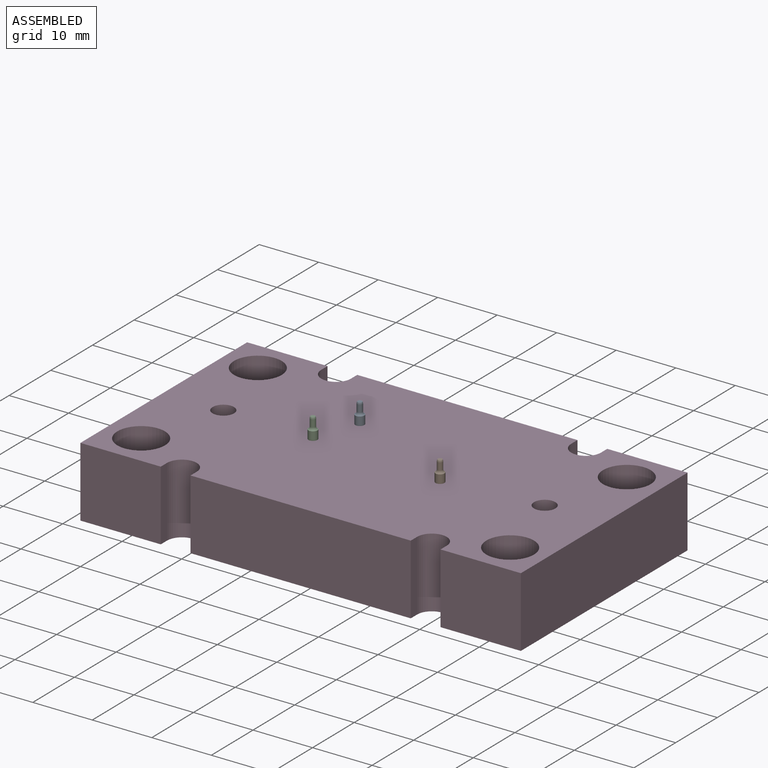
[diagram: assembled view]
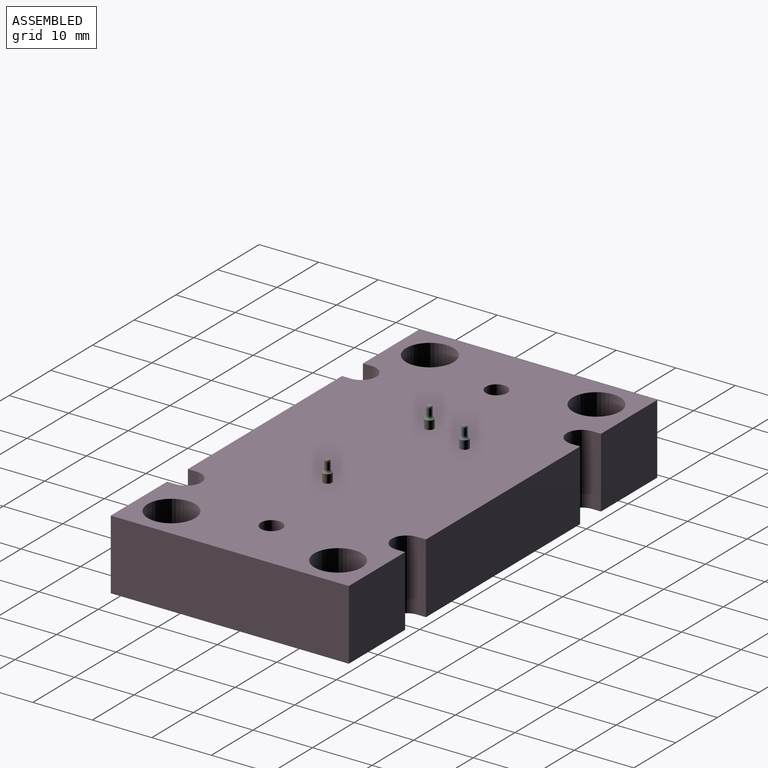
[diagram: assembled view, second angle]
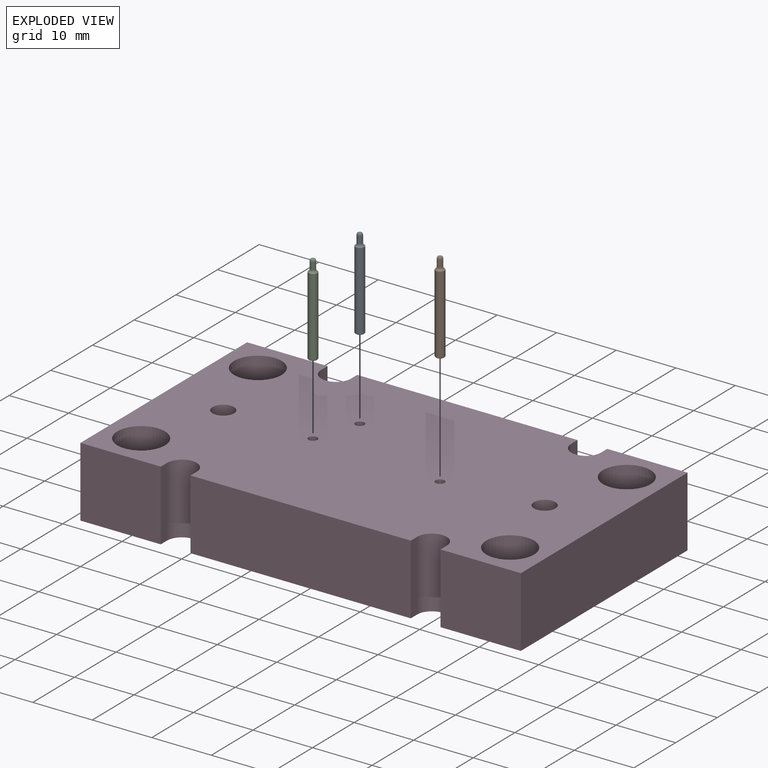
[diagram: exploded view]
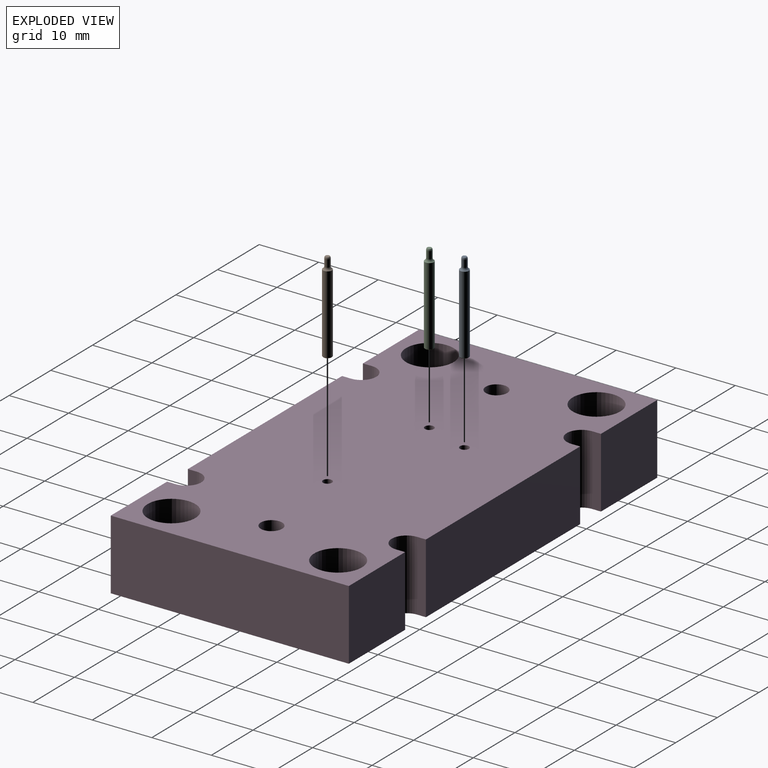
[diagram: exploded view, second angle]
ASSEMBLY  parts=4 mates=3
PART A: 9 faces, bbox 2.1x2.1x15.2 mm
  f0: plane 0.71x0.71mm, normal (0,0,1), area 0.4mm2, adj f7
  f1: plane 1.3x1.3mm, normal (0,0,-1), area 1.3mm2, adj f8
  f2: cylinder r=0.75mm len=13.14mm, axis (0,0,1), area 61.9mm2, adj f3,f8
  f3: torus R=0.95mm, axis (0,0,1), area 2mm2, adj f2,f4
  f4: cylinder r=0.45mm len=1.21mm, axis (0,0,1), area 3.4mm2, adj f3,f5
  f5: revolved ~0.9x0.9mm, area 0.5mm2, adj f4,f6
  f6: cone r=0.42mm half-angle=20deg, axis (0,0,-1), area 0.3mm2, adj f5,f7
  f7: torus R=0.36mm, axis (0,0,1), area 0.1mm2, adj f0,f6
  f8: cone r=0.75mm half-angle=45deg, axis (0,0,1), area 0.6mm2, adj f1,f2
PART B: same geometry as A
PART C: same geometry as A
PART D: 47 faces, bbox 74x40x11.8 mm
  f0: cylinder r=2.5mm len=11.8mm, axis (0,0,-1), area 92.7mm2, adj f1,f24,f26,f27
  f1: plane 11.8x1.5mm, normal (-1,0,0), area 17.7mm2, adj f0,f2,f26,f27
  f2: plane 13.5x11.8mm, normal (0,-1,0), area 159.3mm2, adj f1,f3,f26,f27
  f3: plane 40x11.8mm, normal (1,0,0), area 472mm2, adj f2,f4,f26,f27
  f4: plane 13.5x11.8mm, normal (0,1,0), area 159.3mm2, adj f3,f5,f26,f27
  f5: plane 11.8x1.5mm, normal (-1,0,0), area 17.7mm2, adj f4,f6,f26,f27
  f6: cylinder r=2.5mm len=11.8mm, axis (0,0,-1), area 92.7mm2, adj f5,f7,f26,f27
  f7: plane 11.8x1.5mm, normal (1,0,0), area 17.7mm2, adj f6,f8,f26,f27
  f8: plane 37x11.8mm, normal (0,1,0), area 436.6mm2, adj f7,f9,f26,f27
  f9: plane 11.8x1.5mm, normal (-1,0,0), area 17.7mm2, adj f8,f10,f26,f27
  f10: cylinder r=2.5mm len=11.8mm, axis (0,0,-1), area 92.7mm2, adj f9,f11,f26,f27
  f11: plane 11.8x1.5mm, normal (1,0,0), area 17.7mm2, adj f10,f12,f26,f27
  f12: plane 13.5x11.8mm, normal (0,1,0), area 159.3mm2, adj f11,f13,f26,f27
  f13: plane 40x11.8mm, normal (-1,0,0), area 472mm2, adj f12,f14,f26,f27
  f14: plane 13.5x11.8mm, normal (0,-1,0), area 159.3mm2, adj f13,f15,f26,f27
  f15: plane 11.8x1.5mm, normal (1,0,0), area 17.7mm2, adj f14,f16,f26,f27
  f16: cylinder r=2.5mm len=11.8mm, axis (0,0,-1), area 92.7mm2, adj f15,f17,f26,f27
  f17: plane 11.8x1.5mm, normal (-1,0,0), area 17.7mm2, adj f16,f18,f26,f27
  f18: plane 37x11.8mm, normal (0,-1,0), area 436.6mm2, adj f17,f24,f26,f27
  f19: cylinder r=4mm len=8mm, axis (0,0,-1), area 100.5mm2, adj f26,f33
  f20: cylinder r=1.8mm len=11.8mm, axis (0,0,-1), area 133.5mm2, adj f26,f27
  f21: cylinder r=1.8mm len=11.8mm, axis (0,0,-1), area 133.5mm2, adj f26,f27
  f22: cylinder r=4mm len=8mm, axis (0,0,-1), area 100.5mm2, adj f26,f35
  f23: cylinder r=4mm len=8mm, axis (0,0,-1), area 100.5mm2, adj f26,f31
  f24: plane 11.8x1.5mm, normal (1,0,0), area 17.7mm2, adj f0,f18,f26,f27
  f25: cylinder r=4mm len=8mm, axis (0,0,-1), area 100.5mm2, adj f26,f29
  f26: plane 74x40mm, normal (0,0,1), area 2664mm2, adj f0,f1,f2,f3,f4,f5,f6,f7
  f27: plane 74x40mm, normal (0,0,-1), area 2070.9mm2, adj f0,f1,f2,f3,f4,f5,f6,f7
  f28: cylinder r=2.25mm len=7.8mm, axis (0,0,-1), area 110.3mm2, adj f27,f29
  f29: plane 8x8mm, normal (0,0,1), area 34.4mm2, adj f25,f28
  f30: cylinder r=2.25mm len=7.8mm, axis (0,0,-1), area 110.3mm2, adj f27,f31
  f31: plane 8x8mm, normal (0,0,1), area 34.4mm2, adj f23,f30
  f32: cylinder r=2.25mm len=7.8mm, axis (0,0,-1), area 110.3mm2, adj f27,f33
  f33: plane 8x8mm, normal (0,0,1), area 34.4mm2, adj f19,f32
  f34: cylinder r=2.25mm len=7.8mm, axis (0,0,-1), area 110.3mm2, adj f27,f35
  f35: plane 8x8mm, normal (0,0,1), area 34.4mm2, adj f22,f34
  f36: cone r=0mm half-angle=59deg, axis (0,0,-1), area 14.7mm2, adj f37
  f37: cylinder r=2mm len=4.85mm, axis (0,0,-1), area 60.9mm2, adj f36,f40
  f38: cone r=0mm half-angle=59deg, axis (0,0,-1), area 14.7mm2, adj f39
  f39: cylinder r=2mm len=4.85mm, axis (0,0,-1), area 60.9mm2, adj f38,f41
  f40: cone r=2mm half-angle=45deg, axis (0,0,-1), area 2.8mm2, adj f27,f37
  f41: cone r=2mm half-angle=45deg, axis (0,0,-1), area 2.8mm2, adj f27,f39
  f42: cylinder r=15mm len=30mm, axis (0,0,-1), area 188.5mm2, adj f27,f43
  f43: plane 30x30mm, normal (0,0,-1), area 701.6mm2, adj f42,f44,f45,f46
  f44: cylinder r=0.75mm len=9.8mm, axis (0,0,1), area 46.2mm2, adj f26,f43
  f45: cylinder r=0.75mm len=9.8mm, axis (0,0,1), area 46.2mm2, adj f26,f43
  f46: cylinder r=0.75mm len=9.8mm, axis (0,0,1), area 46.2mm2, adj f26,f43
PLACE A t=(-9.08,7.16,0)mm
PLACE B t=(10.78,-1.95,0)mm
PLACE C t=(-11.6,-0.5,0)mm
PLACE D at identity
MATE fastened B.f2 <-> D.f45  axis (0,0,-1) through (10.78,-1.95,0)mm
MATE fastened C.f2 <-> D.f46  axis (0,0,-1) through (-11.6,-0.5,0)mm
MATE fastened A.f2 <-> D.f44  axis (0,0,-1) through (-9.08,7.16,0)mm
